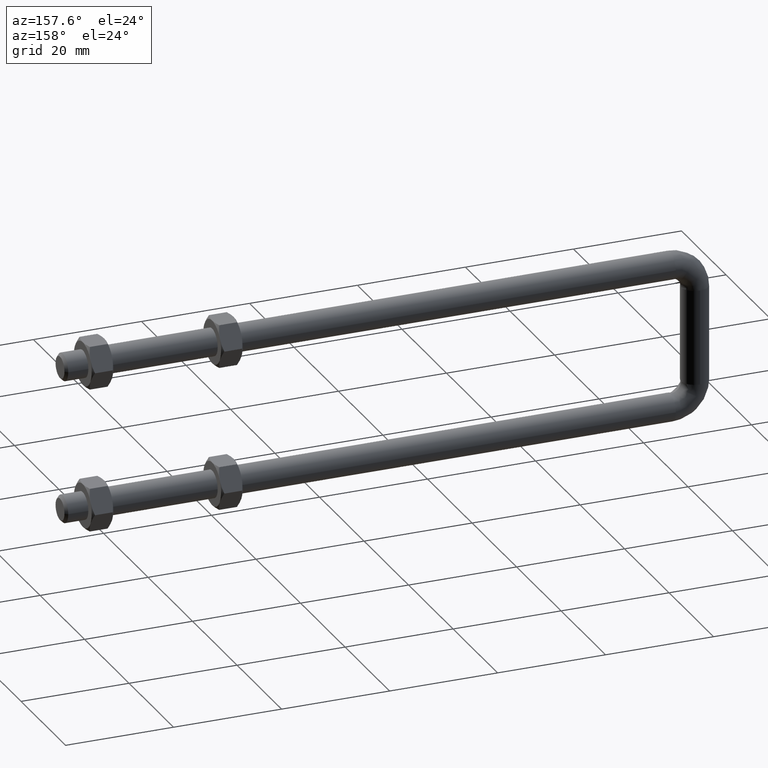
[diagram: clean part render]
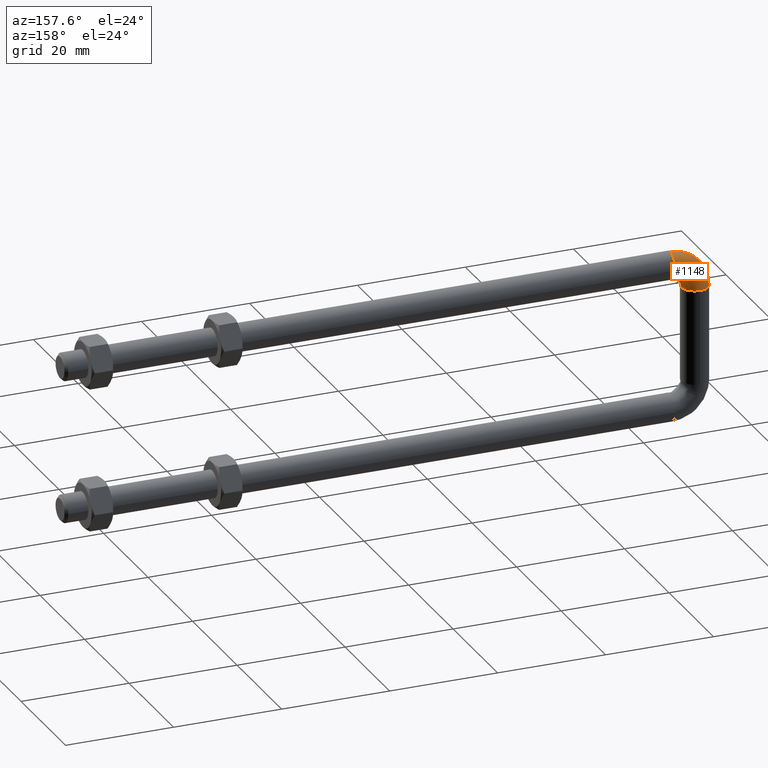
[diagram: same view with one face highlighted and labeled with its STEP entity id]
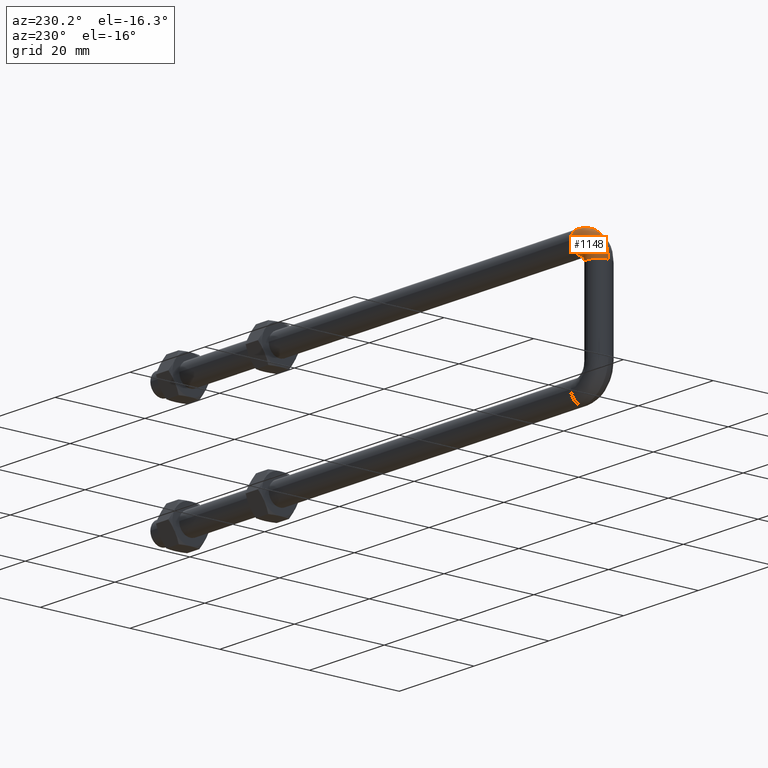
[diagram: same view with one face highlighted and labeled with its STEP entity id]
A machine part, auxiliary view. The second image highlights one B-rep face of the part: STEP entity #1148.
A second angle (auxiliary view) of the same face is appended — the face is thin or edge-on in the first view.
In plain terms, the highlighted face is a freeform B-spline surface patch.
Its self-contained STEP definition (entity closure, byte-faithful):
#23 = CARTESIAN_POINT ( 'NONE',  ( -87.48751041300015200, -4.500000000000000900, 0.2495835420000005500 ) ) ;
#26 = ORIENTED_EDGE ( 'NONE', *, *, #484, .T. ) ;
#69 = CIRCLE ( 'NONE', #1177, 2.500000000000005800 ) ;
#106 = VERTEX_POINT ( 'NONE', #145 ) ;
#111 = AXIS2_PLACEMENT_3D ( 'NONE', #614, #1482, #1296 ) ;
#131 = EDGE_CURVE ( 'NONE', #798, #865, #1673, .T. ) ;
#135 = VERTEX_POINT ( 'NONE', #610 ) ;
#145 = CARTESIAN_POINT ( 'NONE',  ( -80.50000000000015600, -2.500000000000000400, 7.716145711989227900E-010 ) ) ;
#177 = CIRCLE ( 'NONE', #1302, 2.500000000000005800 ) ;
#185 = AXIS2_PLACEMENT_3D ( 'NONE', #1195, #1270, #648 ) ;
#189 = DIRECTION ( 'NONE',  ( -1.000000000000000000, 0.0000000000000000000, 1.215902973568880900E-017 ) ) ;
#202 = CARTESIAN_POINT ( 'NONE',  ( -85.00000000000015600, -4.500000000000000900, -2.500000000000004400 ) ) ;
#218 = CARTESIAN_POINT ( 'NONE',  ( -80.50000000000018500, 1.583343564999999200, -2.500000000000005800 ) ) ;
#244 = DIRECTION ( 'NONE',  ( 0.0000000000000000000, 0.0000000000000000000, -1.000000000000000000 ) ) ;
#292 = CARTESIAN_POINT ( 'NONE',  ( -80.50000000000015600, 2.487510413000000800, 0.2495835420000005500 ) ) ;
#303 = CARTESIAN_POINT ( 'NONE',  ( -86.58334356500024900, -0.9364598439999991500, -2.500000000000008900 ) ) ;
#317 = CARTESIAN_POINT ( 'NONE',  ( -85.00000000000015600, -4.500000000000000900, -2.500000000000002200 ) ) ;
#334 = FACE_OUTER_BOUND ( 'NONE', #404, .T. ) ;
#350 = DIRECTION ( 'NONE',  ( -0.0000000000000000000, 1.000000000000000000, -0.0000000000000000000 ) ) ;
#369 = CARTESIAN_POINT ( 'NONE',  ( -80.50000000000015600, -4.499999999999977800, 2.568746260656442000E-009 ) ) ;
#373 = AXIS2_PLACEMENT_3D ( 'NONE', #924, #350, #244 ) ;
#395 = EDGE_CURVE ( 'NONE', #1084, #106, #69, .T. ) ;
#404 = EDGE_LOOP ( 'NONE', ( #1562, #1036, #926, #1444, #26, #1293 ) ) ;
#420 = VERTEX_POINT ( 'NONE', #1467 ) ;
#429 = CARTESIAN_POINT ( 'NONE',  ( -81.58629349300025500, -2.645581011000000400, -1.325849901000003600 ) ) ;
#467 = CARTESIAN_POINT ( 'NONE',  ( -84.06354015600020100, 1.583343565000000500, -2.500000000000006700 ) ) ;
#484 = EDGE_CURVE ( 'NONE', #135, #1084, #177, .T. ) ;
#541 = CARTESIAN_POINT ( 'NONE',  ( -85.00000000000018500, -1.863961030999999000, -2.500000000000008000 ) ) ;
#551 = CARTESIAN_POINT ( 'NONE',  ( -80.50000000000018500, -2.645581011000000000, -1.325849901000002900 ) ) ;
#601 = EDGE_CURVE ( 'NONE', #798, #106, #705, .T. ) ;
#602 = DIRECTION ( 'NONE',  ( -1.000000000000000000, -0.0000000000000000000, -0.0000000000000000000 ) ) ;
#610 = CARTESIAN_POINT ( 'NONE',  ( -80.50000000000012800, 2.499999999911704900, 1.059888535785761500E-009 ) ) ;
#614 = CARTESIAN_POINT ( 'NONE',  ( -85.00000000000015600, -4.500000000000000900, -2.311115933264683000E-030 ) ) ;
#629 = CARTESIAN_POINT ( 'NONE',  ( -82.50000000008844800, -4.500000000000000900, 1.059888994874992900E-009 ) ) ;
#648 = DIRECTION ( 'NONE',  ( 1.000000000000000000, 0.0000000000000000000, -1.335385823345236400E-017 ) ) ;
#665 = EDGE_CURVE ( 'NONE', #135, #420, #1100, .T. ) ;
#695 = CARTESIAN_POINT ( 'NONE',  ( -84.68578444500022300, 2.645581011000000400, -1.325849901000002700 ) ) ;
#705 = CIRCLE ( 'NONE', #775, 2.000000000176624500 ) ;
#711 = CARTESIAN_POINT ( 'NONE',  ( -83.13603896900016800, 0.0000000000000000000, -2.500000000000004900 ) ) ;
#731 = CARTESIAN_POINT ( 'NONE',  ( -84.59318883300014100, 2.487510412999999900, 0.2495835420000006600 ) ) ;
#744 = EDGE_CURVE ( 'NONE', #865, #420, #1213, .T. ) ;
#775 = AXIS2_PLACEMENT_3D ( 'NONE', #369, #1260, #189 ) ;
#798 = VERTEX_POINT ( 'NONE', #629 ) ;
#824 = CARTESIAN_POINT ( 'NONE',  ( -83.41665643500026300, -2.791462216999999900, -2.500000000000008900 ) ) ;
#840 = CARTESIAN_POINT ( 'NONE',  ( -82.35441898900023700, -3.413706507000000100, -1.325849901000003600 ) ) ;
#844 = CARTESIAN_POINT ( 'NONE',  ( -83.41665643500022000, -4.500000000000000000, -2.500000000000005800 ) ) ;
#865 = VERTEX_POINT ( 'NONE', #317 ) ;
#867 = DIRECTION ( 'NONE',  ( 0.0000000000000000000, 0.0000000000000000000, -1.000000000000000000 ) ) ;
#898 =( BOUNDED_SURFACE ( )  B_SPLINE_SURFACE ( 3, 3, ( 
 ( #292, #731, #1189, #23 ),
 ( #1607, #695, #1104, #1082 ),
 ( #218, #467, #303, #1345 ),
 ( #1210, #711, #541, #202 ),
 ( #954, #1703, #824, #844 ),
 ( #551, #429, #840, #1503 ),
 ( #997, #1101, #1047, #1532 ) ),
 .UNSPECIFIED., .F., .F., .F. ) 
 B_SPLINE_SURFACE_WITH_KNOTS ( ( 4, 3, 4 ),
 ( 4, 4 ),
 ( 0.0000000000000000000, 0.5000000000000000000, 1.000000000000000000 ),
 ( 0.0000000000000000000, 1.000000000000000000 ),
 .UNSPECIFIED. ) 
 GEOMETRIC_REPRESENTATION_ITEM ( )  RATIONAL_B_SPLINE_SURFACE ( (
 ( 1.000000000000000000, 0.8047378541243620500, 0.8047378541243620500, 1.000000000000000000),
 ( 0.7805883148851628900, 0.6281689654752379300, 0.6281689654752379300, 0.7805883148851628900),
 ( 0.7805883148851628900, 0.6281689654752379300, 0.6281689654752379300, 0.7805883148851628900),
 ( 1.000000000000000000, 0.8047378541243620500, 0.8047378541243620500, 1.000000000000000000),
 ( 0.7805883148851628900, 0.6281689654752379300, 0.6281689654752379300, 0.7805883148851628900),
 ( 0.7805883148851628900, 0.6281689654752379300, 0.6281689654752379300, 0.7805883148851628900),
 ( 1.000000000000000000, 0.8047378541243620500, 0.8047378541243620500, 1.000000000000000000) ) ) 
 REPRESENTATION_ITEM ( '' )  SURFACE ( )  );
#924 = CARTESIAN_POINT ( 'NONE',  ( -85.00000000000015600, -4.500000000000000900, -2.311115933264683000E-030 ) ) ;
#926 = ORIENTED_EDGE ( 'NONE', *, *, #744, .T. ) ;
#938 = DIRECTION ( 'NONE',  ( 0.0000000000000000000, -1.776356839400254400E-015, -1.000000000000000000 ) ) ;
#954 = CARTESIAN_POINT ( 'NONE',  ( -80.50000000000018500, -1.583343564999999200, -2.500000000000005800 ) ) ;
#997 = CARTESIAN_POINT ( 'NONE',  ( -80.50000000000015600, -2.487510413000000800, 0.2495835420000005500 ) ) ;
#1036 = ORIENTED_EDGE ( 'NONE', *, *, #131, .T. ) ;
#1047 = CARTESIAN_POINT ( 'NONE',  ( -82.51248958700017500, -3.321110893999999800, 0.2495835420000006600 ) ) ;
#1082 = CARTESIAN_POINT ( 'NONE',  ( -87.64558101100018900, -4.500000000000000000, -1.325849901000002900 ) ) ;
#1084 = VERTEX_POINT ( 'NONE', #1378 ) ;
#1100 = CIRCLE ( 'NONE', #185, 6.999999999823369700 ) ;
#1101 = CARTESIAN_POINT ( 'NONE',  ( -81.67888910600014200, -2.487510412999999900, 0.2495835420000006600 ) ) ;
#1104 = CARTESIAN_POINT ( 'NONE',  ( -87.64558101100023200, -0.3142155549999997000, -1.325849901000003600 ) ) ;
#1138 = CARTESIAN_POINT ( 'NONE',  ( -80.50000000000015600, 0.0000000000000000000, -2.311115933264683000E-030 ) ) ;
#1148 = ADVANCED_FACE ( 'NONE', ( #334 ), #898, .T. ) ;
#1177 = AXIS2_PLACEMENT_3D ( 'NONE', #1527, #602, #867 ) ;
#1189 = CARTESIAN_POINT ( 'NONE',  ( -87.48751041300019400, -0.4068111669999992500, 0.2495835420000006600 ) ) ;
#1195 = CARTESIAN_POINT ( 'NONE',  ( -80.50000000000012800, -4.499999999999952000, 2.568745273319030400E-009 ) ) ;
#1210 = CARTESIAN_POINT ( 'NONE',  ( -80.50000000000015600, 0.0000000000000000000, -2.500000000000004400 ) ) ;
#1213 = CIRCLE ( 'NONE', #111, 2.500000000000008000 ) ;
#1260 = DIRECTION ( 'NONE',  ( -1.215902983128193800E-017, 1.215902983128171200E-017, -1.000000000000000000 ) ) ;
#1270 = DIRECTION ( 'NONE',  ( 1.335385822021832200E-017, -1.335385822021820400E-017, 1.000000000000000000 ) ) ;
#1293 = ORIENTED_EDGE ( 'NONE', *, *, #395, .T. ) ;
#1296 = DIRECTION ( 'NONE',  ( 0.0000000000000000000, 0.0000000000000000000, -1.000000000000000000 ) ) ;
#1302 = AXIS2_PLACEMENT_3D ( 'NONE', #1138, #1316, #938 ) ;
#1316 = DIRECTION ( 'NONE',  ( -1.000000000000000000, -0.0000000000000000000, -0.0000000000000000000 ) ) ;
#1345 = CARTESIAN_POINT ( 'NONE',  ( -86.58334356500017700, -4.500000000000000000, -2.500000000000005800 ) ) ;
#1378 = CARTESIAN_POINT ( 'NONE',  ( -80.50000000000015600, 0.0000000000000000000, -2.500000000000000000 ) ) ;
#1444 = ORIENTED_EDGE ( 'NONE', *, *, #665, .F. ) ;
#1467 = CARTESIAN_POINT ( 'NONE',  ( -87.50000000000015600, -4.499999999999976000, 7.716141121096912600E-010 ) ) ;
#1482 = DIRECTION ( 'NONE',  ( -0.0000000000000000000, 1.000000000000000000, -0.0000000000000000000 ) ) ;
#1503 = CARTESIAN_POINT ( 'NONE',  ( -82.35441898900019500, -4.500000000000000000, -1.325849901000002900 ) ) ;
#1527 = CARTESIAN_POINT ( 'NONE',  ( -80.50000000000015600, 0.0000000000000000000, -2.311115933264683000E-030 ) ) ;
#1532 = CARTESIAN_POINT ( 'NONE',  ( -82.51248958700016100, -4.500000000000000900, 0.2495835420000008200 ) ) ;
#1562 = ORIENTED_EDGE ( 'NONE', *, *, #601, .F. ) ;
#1607 = CARTESIAN_POINT ( 'NONE',  ( -80.50000000000018500, 2.645581011000000000, -1.325849901000002900 ) ) ;
#1673 = CIRCLE ( 'NONE', #373, 2.500000000000008000 ) ;
#1703 = CARTESIAN_POINT ( 'NONE',  ( -82.20853778300023900, -1.583343565000000500, -2.500000000000006700 ) ) ;